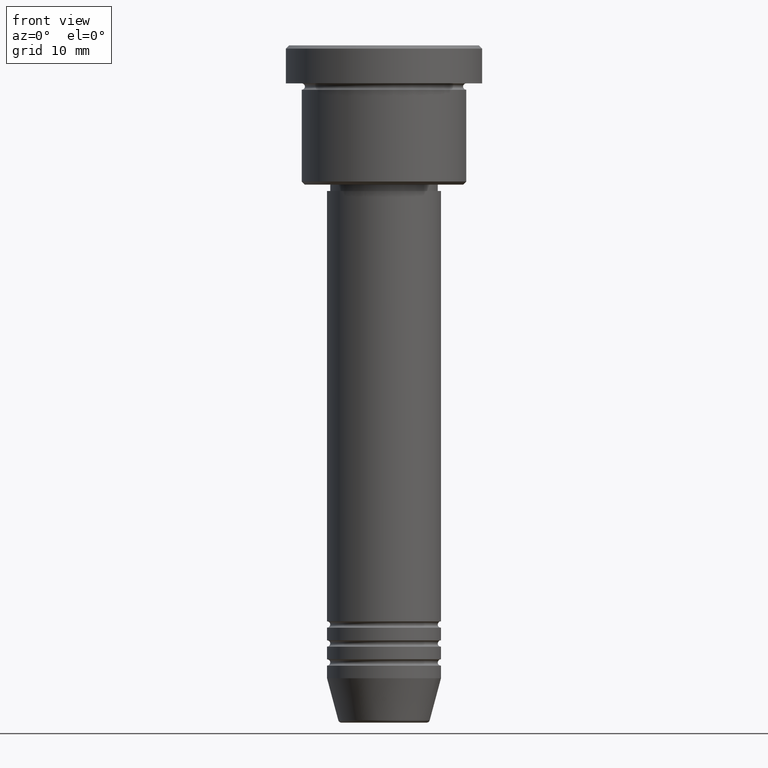
[diagram: clean part render]
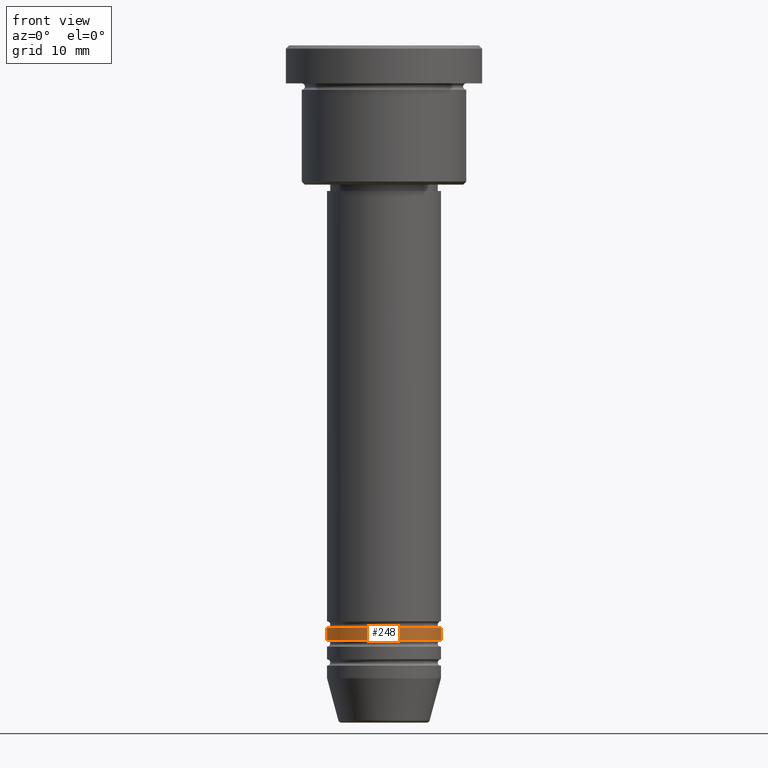
[diagram: same view with one face highlighted and labeled with its STEP entity id]
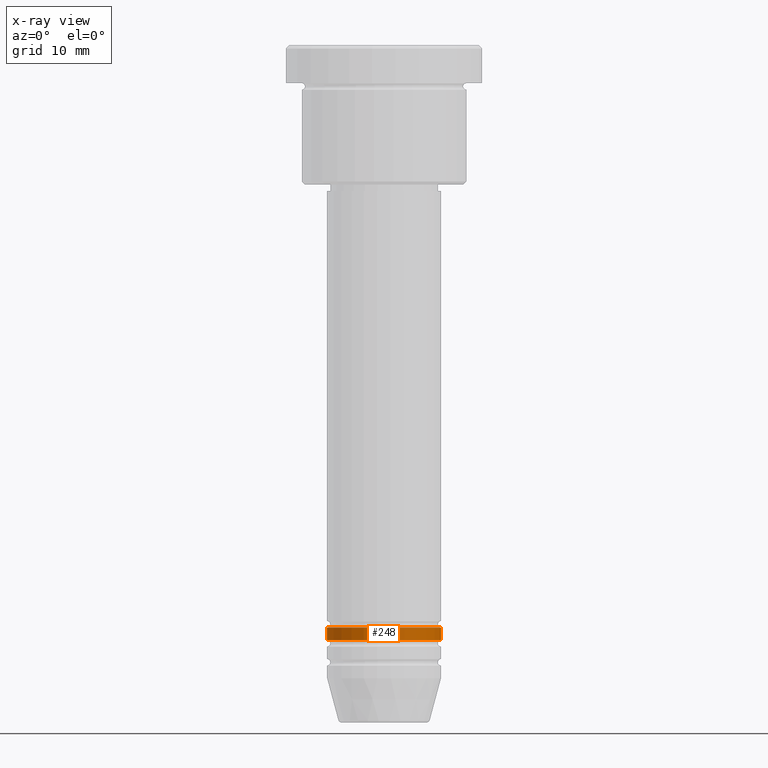
[diagram: x-ray of the same camera — body ghosted, the highlighted face saturated]
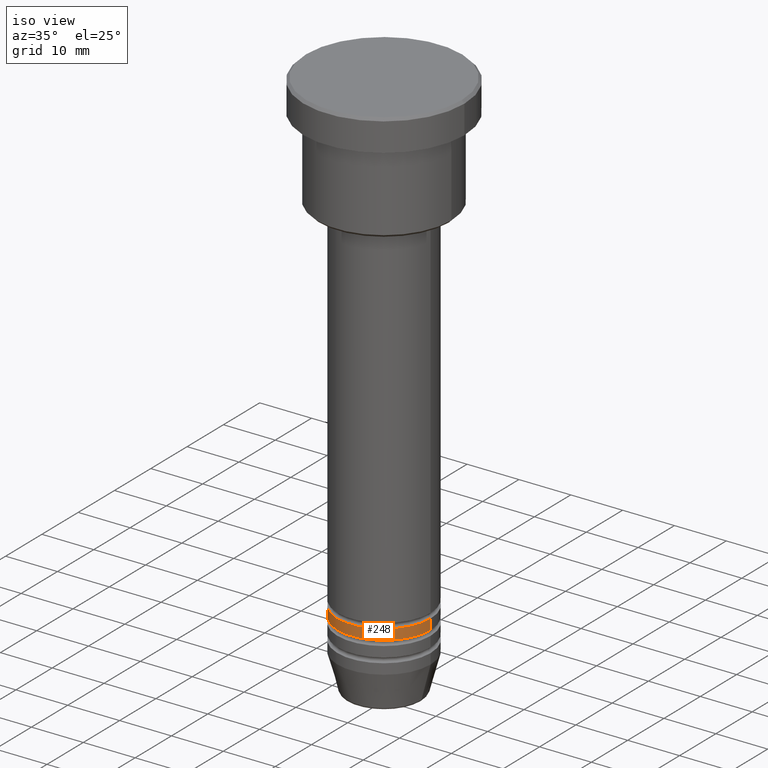
[diagram: same view with one face highlighted and labeled with its STEP entity id]
A machine part, front view. The second image highlights one B-rep face of the part: STEP entity #248.
The next image is the same camera in x-ray: the body ghosted, the highlighted face saturated — about 0% of this face is hidden behind the body in this view.
A second angle (iso view) of the same face is appended — the face is thin or edge-on in the first view.
In plain terms, the highlighted cylindrical surface (partial cylindrical patch) has radius 9 mm, axis along (-0, -0, 1).
Its self-contained STEP definition (entity closure, byte-faithful):
#75 = FACE_OUTER_BOUND ( 'NONE', #608, .T. ) ;
#123 = CARTESIAN_POINT ( 'NONE',  ( 0.000000000000000000, 0.000000000000000000, -91.99999999999998579 ) ) ;
#140 = ORIENTED_EDGE ( 'NONE', *, *, #1122, .F. ) ;
#160 = CARTESIAN_POINT ( 'NONE',  ( 0.000000000000000000, 0.000000000000000000, 0.000000000000000000 ) ) ;
#213 = EDGE_CURVE ( 'NONE', #800, #445, #291, .T. ) ;
#215 = CARTESIAN_POINT ( 'NONE',  ( 9.000000000000000000, 0.000000000000000000, -91.99999999999998579 ) ) ;
#248 = ADVANCED_FACE ( 'NONE', ( #75 ), #774, .T. ) ;
#267 = DIRECTION ( 'NONE',  ( 1.000000000000000000, 0.000000000000000000, 0.000000000000000000 ) ) ;
#273 = CARTESIAN_POINT ( 'NONE',  ( -9.000000000000000000, 1.102182119232617714E-15, -93.99999999999997158 ) ) ;
#277 = ORIENTED_EDGE ( 'NONE', *, *, #1024, .T. ) ;
#291 = LINE ( 'NONE', #652, #1054 ) ;
#325 = DIRECTION ( 'NONE',  ( 1.000000000000000000, 0.000000000000000000, 0.000000000000000000 ) ) ;
#329 = ORIENTED_EDGE ( 'NONE', *, *, #213, .F. ) ;
#388 = DIRECTION ( 'NONE',  ( -0.000000000000000000, -0.000000000000000000, 1.000000000000000000 ) ) ;
#414 = CARTESIAN_POINT ( 'NONE',  ( 9.000000000000000000, 0.000000000000000000, -93.99999999999997158 ) ) ;
#424 = DIRECTION ( 'NONE',  ( -0.000000000000000000, -0.000000000000000000, 1.000000000000000000 ) ) ;
#445 = VERTEX_POINT ( 'NONE', #779 ) ;
#498 = VERTEX_POINT ( 'NONE', #414 ) ;
#528 = AXIS2_PLACEMENT_3D ( 'NONE', #1077, #984, #267 ) ;
#536 = CIRCLE ( 'NONE', #528, 9.000000000000000000 ) ;
#608 = EDGE_LOOP ( 'NONE', ( #329, #277, #1123, #140 ) ) ;
#652 = CARTESIAN_POINT ( 'NONE',  ( -9.000000000000000000, 1.102182119232617714E-15, 0.000000000000000000 ) ) ;
#729 = DIRECTION ( 'NONE',  ( 1.000000000000000000, 0.000000000000000000, 0.000000000000000000 ) ) ;
#774 = CYLINDRICAL_SURFACE ( 'NONE', #804, 9.000000000000000000 ) ;
#779 = CARTESIAN_POINT ( 'NONE',  ( -9.000000000000000000, 1.102182119232617714E-15, -91.99999999999998579 ) ) ;
#790 = AXIS2_PLACEMENT_3D ( 'NONE', #123, #388, #729 ) ;
#800 = VERTEX_POINT ( 'NONE', #273 ) ;
#804 = AXIS2_PLACEMENT_3D ( 'NONE', #160, #424, #325 ) ;
#812 = CARTESIAN_POINT ( 'NONE',  ( 9.000000000000000000, 0.000000000000000000, 0.000000000000000000 ) ) ;
#842 = EDGE_CURVE ( 'NONE', #498, #1116, #904, .T. ) ;
#863 = CIRCLE ( 'NONE', #790, 9.000000000000000000 ) ;
#868 = VECTOR ( 'NONE', #1076, 1000.000000000000000 ) ;
#904 = LINE ( 'NONE', #812, #868 ) ;
#984 = DIRECTION ( 'NONE',  ( -0.000000000000000000, -0.000000000000000000, 1.000000000000000000 ) ) ;
#1024 = EDGE_CURVE ( 'NONE', #800, #498, #536, .T. ) ;
#1054 = VECTOR ( 'NONE', #1157, 1000.000000000000000 ) ;
#1076 = DIRECTION ( 'NONE',  ( -0.000000000000000000, -0.000000000000000000, 1.000000000000000000 ) ) ;
#1077 = CARTESIAN_POINT ( 'NONE',  ( 0.000000000000000000, 0.000000000000000000, -93.99999999999997158 ) ) ;
#1116 = VERTEX_POINT ( 'NONE', #215 ) ;
#1122 = EDGE_CURVE ( 'NONE', #445, #1116, #863, .T. ) ;
#1123 = ORIENTED_EDGE ( 'NONE', *, *, #842, .T. ) ;
#1157 = DIRECTION ( 'NONE',  ( -0.000000000000000000, -0.000000000000000000, 1.000000000000000000 ) ) ;